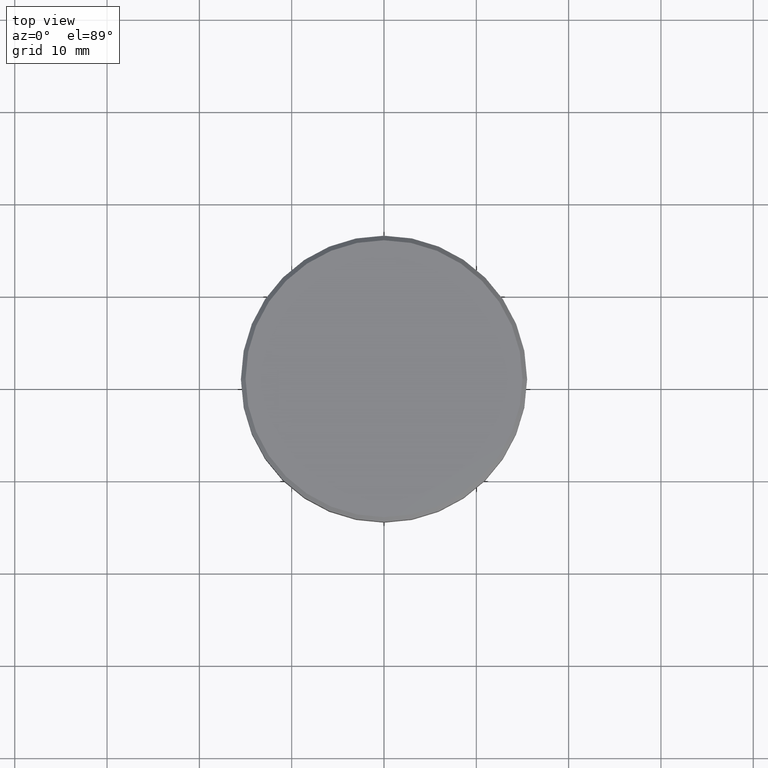
[diagram: clean part render]
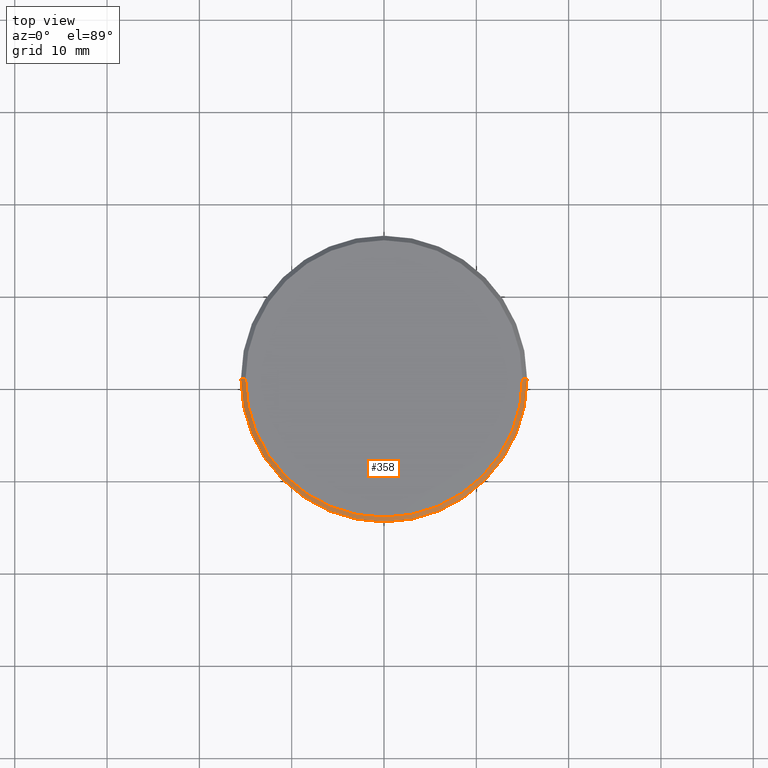
[diagram: same view with one face highlighted and labeled with its STEP entity id]
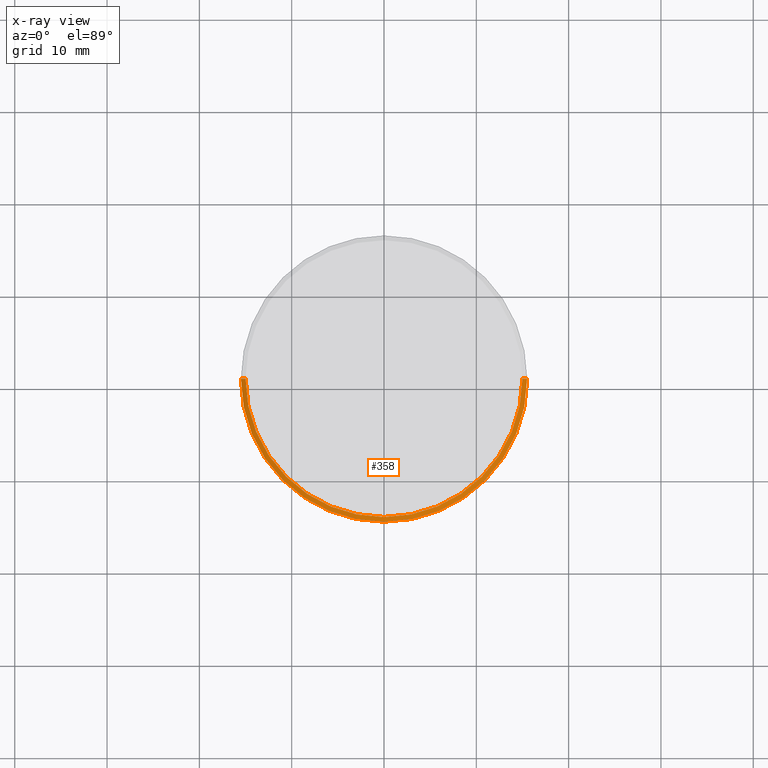
[diagram: x-ray of the same camera — body ghosted, the highlighted face saturated]
A machine part, top view. The second image highlights one B-rep face of the part: STEP entity #358.
The next image is the same camera in x-ray: the body ghosted, the highlighted face saturated — about 0% of this face is hidden behind the body in this view.
In plain terms, the highlighted conical surface has half-angle 45 deg.
Its self-contained STEP definition (entity closure, byte-faithful):
#46 = AXIS2_PLACEMENT_3D ( 'NONE', #350, #66, #54 ) ;
#54 = DIRECTION ( 'NONE',  ( 1.000000000000000000, 0.000000000000000000, 0.000000000000000000 ) ) ;
#66 = DIRECTION ( 'NONE',  ( 0.000000000000000000, 0.000000000000000000, -1.000000000000000000 ) ) ;
#81 = VECTOR ( 'NONE', #1146, 1000.000000000000000 ) ;
#96 = CARTESIAN_POINT ( 'NONE',  ( 0.000000000000000000, 0.000000000000000000, 0.000000000000000000 ) ) ;
#98 = CARTESIAN_POINT ( 'NONE',  ( 14.99999999999999289, 1.836970198721028800E-15, 0.000000000000000000 ) ) ;
#135 = EDGE_CURVE ( 'NONE', #531, #875, #487, .T. ) ;
#167 = ORIENTED_EDGE ( 'NONE', *, *, #135, .F. ) ;
#180 = EDGE_CURVE ( 'NONE', #852, #875, #1149, .T. ) ;
#183 = DIRECTION ( 'NONE',  ( 0.000000000000000000, 0.000000000000000000, -1.000000000000000000 ) ) ;
#189 = EDGE_LOOP ( 'NONE', ( #695, #1028, #1027, #167 ) ) ;
#198 = CARTESIAN_POINT ( 'NONE',  ( -14.99999999999999289, 0.000000000000000000, 0.000000000000000000 ) ) ;
#243 = CONICAL_SURFACE ( 'NONE', #1058, 14.99999999999999289, 0.7853981633974500554 ) ;
#255 = CARTESIAN_POINT ( 'NONE',  ( -14.99999999999999289, 0.000000000000000000, 0.000000000000000000 ) ) ;
#277 = DIRECTION ( 'NONE',  ( -1.000000000000000000, 0.000000000000000000, 0.000000000000000000 ) ) ;
#304 = CARTESIAN_POINT ( 'NONE',  ( -15.50000000000000000, 1.898202538678397557E-15, -0.5000000000000057732 ) ) ;
#349 = DIRECTION ( 'NONE',  ( 1.000000000000000000, 0.000000000000000000, 0.000000000000000000 ) ) ;
#350 = CARTESIAN_POINT ( 'NONE',  ( 0.000000000000000000, 0.000000000000000000, -0.5000000000000057732 ) ) ;
#358 = ADVANCED_FACE ( 'NONE', ( #998 ), #243, .T. ) ;
#378 = CIRCLE ( 'NONE', #1098, 14.99999999999999289 ) ;
#449 = CARTESIAN_POINT ( 'NONE',  ( 14.99999999999999289, 1.867586368699713376E-15, 0.000000000000000000 ) ) ;
#487 = CIRCLE ( 'NONE', #46, 15.50000000000000000 ) ;
#531 = VERTEX_POINT ( 'NONE', #788 ) ;
#550 = DIRECTION ( 'NONE',  ( 0.7071067811865487940, 8.659560562354948882E-17, -0.7071067811865463515 ) ) ;
#567 = VECTOR ( 'NONE', #550, 1000.000000000000000 ) ;
#695 = ORIENTED_EDGE ( 'NONE', *, *, #1165, .F. ) ;
#788 = CARTESIAN_POINT ( 'NONE',  ( 15.50000000000000000, 0.000000000000000000, -0.5000000000000057732 ) ) ;
#800 = EDGE_CURVE ( 'NONE', #852, #966, #378, .T. ) ;
#801 = DIRECTION ( 'NONE',  ( -0.000000000000000000, -0.000000000000000000, 1.000000000000000000 ) ) ;
#820 = CARTESIAN_POINT ( 'NONE',  ( 0.000000000000000000, 0.000000000000000000, 0.000000000000000000 ) ) ;
#852 = VERTEX_POINT ( 'NONE', #198 ) ;
#875 = VERTEX_POINT ( 'NONE', #304 ) ;
#966 = VERTEX_POINT ( 'NONE', #449 ) ;
#998 = FACE_OUTER_BOUND ( 'NONE', #189, .T. ) ;
#1010 = LINE ( 'NONE', #98, #567 ) ;
#1027 = ORIENTED_EDGE ( 'NONE', *, *, #180, .T. ) ;
#1028 = ORIENTED_EDGE ( 'NONE', *, *, #800, .F. ) ;
#1058 = AXIS2_PLACEMENT_3D ( 'NONE', #96, #183, #277 ) ;
#1098 = AXIS2_PLACEMENT_3D ( 'NONE', #820, #801, #349 ) ;
#1146 = DIRECTION ( 'NONE',  ( -0.7071067811865487940, 0.000000000000000000, -0.7071067811865463515 ) ) ;
#1149 = LINE ( 'NONE', #255, #81 ) ;
#1165 = EDGE_CURVE ( 'NONE', #966, #531, #1010, .T. ) ;